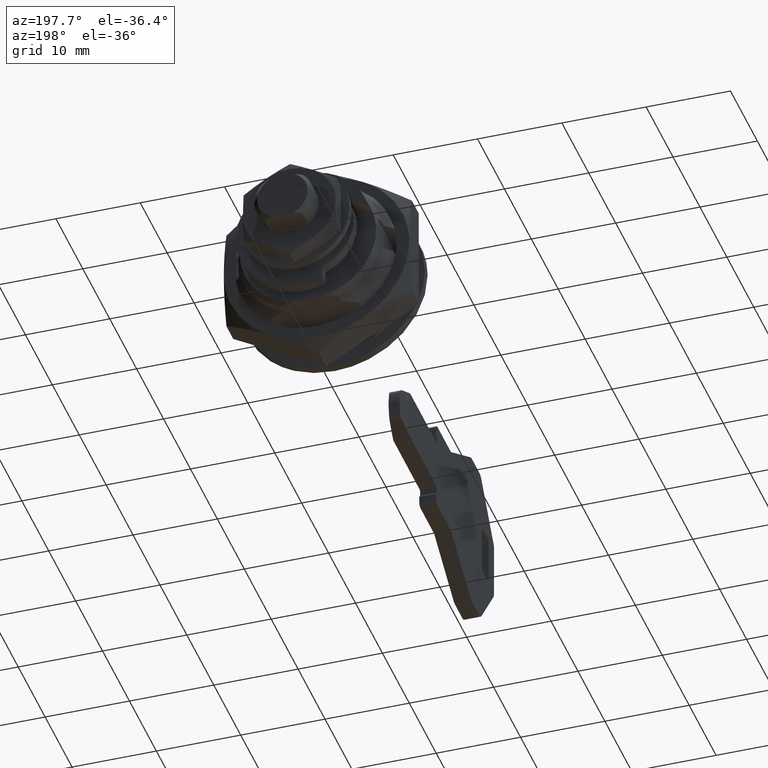
[diagram: clean part render]
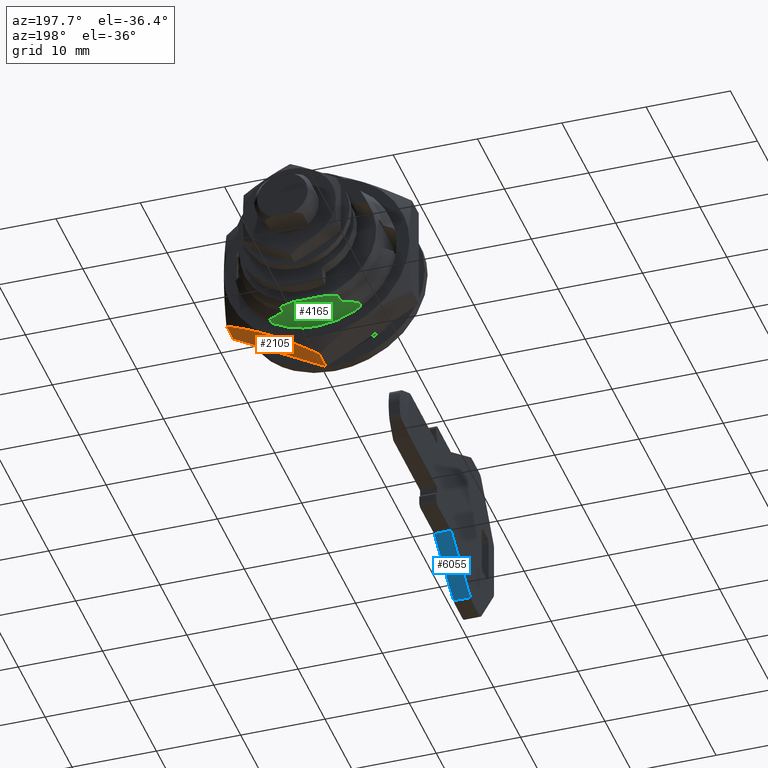
[diagram: same view with three faces highlighted in distinct colors, each labeled with its STEP entity id]
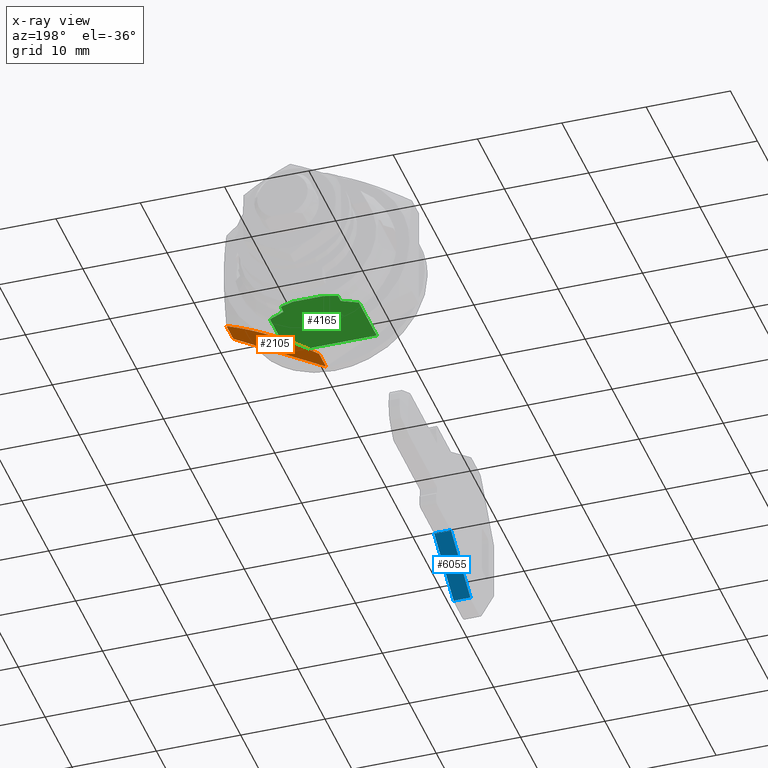
[diagram: x-ray of the same camera — body ghosted, the three highlighted faces saturated]
A machine part, auxiliary view with three faces highlighted in distinct colors.
The next image is the same camera in x-ray (body ghosted, the three faces saturated) — at least one of them is partly hidden behind the body in this view.
Their STEP definitions:

[orange] entity #2105 — the highlighted face is a freeform B-spline surface patch.
#1795=CARTESIAN_POINT('',(4.849396267516419,-2.975774E-016,-12.699999999999999));
#1796=VERTEX_POINT('',#1795);
#1812=CARTESIAN_POINT('',(5.800000000000000,-5.349453371241681,-9.611625701665199));
#1813=VERTEX_POINT('',#1812);
#1825=CARTESIAN_POINT('',(4.849396267516419,-2.975774E-016,-12.699999999999999));
#1826=CARTESIAN_POINT('',(4.921904506133530,-0.224602971591079,-12.570331041948970));
#1827=CARTESIAN_POINT('',(4.991393018424632,-0.450162478950532,-12.440109851683260));
#1828=CARTESIAN_POINT('',(5.090537324562985,-0.790113573536496,-12.243847514141580));
#1829=CARTESIAN_POINT('',(5.122736801379335,-0.903699417632445,-12.178271542688790));
#1830=CARTESIAN_POINT('',(5.185339053940881,-1.131440233173676,-12.046791028215949));
#1831=CARTESIAN_POINT('',(5.215760991474630,-1.245672898768539,-11.980841630404560));
#1832=CARTESIAN_POINT('',(5.362752666195410,-1.816879243707035,-11.651069806569719));
#1833=CARTESIAN_POINT('',(5.464135353772426,-2.274590919210751,-11.386821316757141));
#1834=CARTESIAN_POINT('',(5.629276008722353,-3.191747118405719,-10.857323920185809));
#1835=CARTESIAN_POINT('',(5.692998741956230,-3.651193264844298,-10.592074076574130));
#1836=CARTESIAN_POINT('',(5.774182247247145,-4.523437636202262,-10.088505410502391));
#1837=CARTESIAN_POINT('',(5.795791177380711,-4.936044813104133,-9.850296884879437));
#1838=CARTESIAN_POINT('',(5.800000000000000,-5.349453371241681,-9.611625701665199));
#1839=B_SPLINE_CURVE_WITH_KNOTS('',3,(#1825,#1826,#1827,#1828,#1829,#1830,#1831,#1832,#1833,#1834,#1835,#1836,#1837,#1838),.UNSPECIFIED.,.F.,.U.,(4,2,2,2,2,2,4),(0.0,0.062500000000000,0.093750000000000,0.125000000000000,0.250000000000000,0.375000000000000,0.486813209551073),.UNSPECIFIED.);
#1840=EDGE_CURVE('',#1796,#1813,#1839,.T.);
#1859=CARTESIAN_POINT('',(5.800000000000000,-5.648830570852230,-9.438787696616842));
#1860=VERTEX_POINT('',#1859);
#1861=CARTESIAN_POINT('',(4.849165092728950,-10.999000000000001,-6.350000000000000));
#1862=VERTEX_POINT('',#1861);
#1863=CARTESIAN_POINT('',(5.800000000000000,-5.648830570852230,-9.438787696616842));
#1864=CARTESIAN_POINT('',(5.795808751073855,-6.060390736936629,-9.201183636735403));
#1865=CARTESIAN_POINT('',(5.774356351787330,-6.472745884361489,-8.963120614083538));
#1866=CARTESIAN_POINT('',(5.714327326573565,-7.118068192523106,-8.590559776114057));
#1867=CARTESIAN_POINT('',(5.687388294700834,-7.350499371014879,-8.456371396859325));
#1868=CARTESIAN_POINT('',(5.639224264355345,-7.699503326064737,-8.254882614736712));
#1869=CARTESIAN_POINT('',(5.621859042736284,-7.816014641032784,-8.187617695194291));
#1870=CARTESIAN_POINT('',(5.584695116100500,-8.048575032948831,-8.053354717772075));
#1871=CARTESIAN_POINT('',(5.564917812080886,-8.164510169361215,-7.986422440636097));
#1872=CARTESIAN_POINT('',(5.376641028164135,-9.204958562331607,-7.385745352231510));
#1873=CARTESIAN_POINT('',(5.136571395816003,-10.108811630333619,-6.863928188688202));
#1874=CARTESIAN_POINT('',(4.849165092728950,-10.999000000000001,-6.350000000000000));
#1875=B_SPLINE_CURVE_WITH_KNOTS('',3,(#1863,#1864,#1865,#1866,#1867,#1868,#1869,#1870,#1871,#1872,#1873,#1874),.UNSPECIFIED.,.F.,.U.,(4,2,2,2,2,4),(0.513791066251568,0.625000000000000,0.687500000000000,0.718750000000000,0.750000000000000,1.0),.UNSPECIFIED.);
#1876=EDGE_CURVE('',#1860,#1862,#1875,.T.);
#2063=CARTESIAN_POINT('',(2.299999999999970,0.0,-12.699999999999999));
#2064=VERTEX_POINT('',#2063);
#2065=CARTESIAN_POINT('',(2.299999999999970,0.0,-12.699999999999999));
#2066=CARTESIAN_POINT('',(4.849396267516419,-2.975774E-016,-12.699999999999999));
#2067=QUASI_UNIFORM_CURVE('',1,(#2065,#2066),.UNSPECIFIED.,.F.,.U.);
#2068=EDGE_CURVE('',#2064,#1796,#2067,.T.);
#2078=CARTESIAN_POINT('',(2.125174941072656,-11.548399822180320,-6.032817631526044));
#2079=CARTESIAN_POINT('',(2.125174941072656,0.549400313873935,-13.017182652341070));
#2080=CARTESIAN_POINT('',(5.974825090219751,-11.548399822180320,-6.032817631526044));
#2081=CARTESIAN_POINT('',(5.974825090219751,0.549400313873935,-13.017182652341070));
#2082=B_SPLINE_SURFACE_WITH_KNOTS('',1,1,((#2078,#2080),(#2079,#2081)),.UNSPECIFIED.,.F.,.F.,.U.,(2,2),(2,2),(0.0,13.969184760604280),(0.0,3.849650149147095),.UNSPECIFIED.);
#2083=ORIENTED_EDGE('',*,*,#2068,.T.);
#2084=ORIENTED_EDGE('',*,*,#1840,.T.);
#2085=CARTESIAN_POINT('',(5.800000000000000,-5.648830570852230,-9.438787696616842));
#2086=CARTESIAN_POINT('',(5.800000000000000,-5.349453371241681,-9.611625701665199));
#2087=QUASI_UNIFORM_CURVE('',1,(#2085,#2086),.UNSPECIFIED.,.F.,.U.);
#2088=EDGE_CURVE('',#1860,#1813,#2087,.T.);
#2089=ORIENTED_EDGE('',*,*,#2088,.F.);
#2090=ORIENTED_EDGE('',*,*,#1876,.T.);
#2091=CARTESIAN_POINT('',(2.299999999999970,-10.999000000000001,-6.350000000000000));
#2092=VERTEX_POINT('',#2091);
#2093=CARTESIAN_POINT('',(2.299999999999970,-10.999000000000001,-6.350000000000000));
#2094=CARTESIAN_POINT('',(4.849165092728950,-10.999000000000001,-6.350000000000000));
#2095=QUASI_UNIFORM_CURVE('',1,(#2093,#2094),.UNSPECIFIED.,.F.,.U.);
#2096=EDGE_CURVE('',#2092,#1862,#2095,.T.);
#2097=ORIENTED_EDGE('',*,*,#2096,.F.);
#2098=CARTESIAN_POINT('',(2.299999999999970,-10.999000000000001,-6.350000000000000));
#2099=CARTESIAN_POINT('',(2.299999999999970,0.0,-12.699999999999999));
#2100=QUASI_UNIFORM_CURVE('',1,(#2098,#2099),.UNSPECIFIED.,.F.,.U.);
#2101=EDGE_CURVE('',#2092,#2064,#2100,.T.);
#2102=ORIENTED_EDGE('',*,*,#2101,.T.);
#2103=EDGE_LOOP('',(#2083,#2084,#2089,#2090,#2097,#2102));
#2104=FACE_OUTER_BOUND('',#2103,.T.);
#2105=ADVANCED_FACE('',(#2104),#2082,.T.);

[blue] entity #6055 — the highlighted face is a freeform B-spline surface patch.
#6001=CARTESIAN_POINT('',(-48.237893170505700,-1.0,-9.842237393133500));
#6002=VERTEX_POINT('',#6001);
#6011=CARTESIAN_POINT('',(-48.237893170505700,1.0,-9.842237393133500));
#6012=VERTEX_POINT('',#6011);
#6020=CARTESIAN_POINT('',(-48.237893170505700,1.0,-9.842237393133500));
#6021=CARTESIAN_POINT('',(-48.237893170505700,-1.0,-9.842237393133500));
#6022=QUASI_UNIFORM_CURVE('',1,(#6020,#6021),.UNSPECIFIED.,.F.,.U.);
#6023=EDGE_CURVE('',#6012,#6002,#6022,.T.);
#6028=CARTESIAN_POINT('',(-48.599420203827187,-1.099899996123612,-10.059131709638020));
#6029=CARTESIAN_POINT('',(-40.638571543038367,-1.099899996123612,-5.283104829397738));
#6030=CARTESIAN_POINT('',(-48.599420203827187,1.099900049767792,-10.059131709638020));
#6031=CARTESIAN_POINT('',(-40.638571543038367,1.099900049767792,-5.283104829397738));
#6032=B_SPLINE_SURFACE_WITH_KNOTS('',1,1,((#6028,#6030),(#6029,#6031)),.UNSPECIFIED.,.F.,.F.,.U.,(2,2),(2,2),(0.0,9.283616976198498),(0.0,2.199800045891404),.UNSPECIFIED.);
#6033=CARTESIAN_POINT('',(-41.000100000000003,-1.0,-5.500000000000000));
#6034=VERTEX_POINT('',#6033);
#6035=CARTESIAN_POINT('',(-41.000100000000003,-1.0,-5.500000000000000));
#6036=CARTESIAN_POINT('',(-48.237893170505700,-1.0,-9.842237393133500));
#6037=QUASI_UNIFORM_CURVE('',1,(#6035,#6036),.UNSPECIFIED.,.F.,.U.);
#6038=EDGE_CURVE('',#6034,#6002,#6037,.T.);
#6039=ORIENTED_EDGE('',*,*,#6038,.T.);
#6040=ORIENTED_EDGE('',*,*,#6023,.F.);
#6041=CARTESIAN_POINT('',(-41.000100000000003,1.0,-5.500000000000000));
#6042=VERTEX_POINT('',#6041);
#6043=CARTESIAN_POINT('',(-41.000100000000003,1.0,-5.500000000000000));
#6044=CARTESIAN_POINT('',(-48.237893170505700,1.0,-9.842237393133500));
#6045=QUASI_UNIFORM_CURVE('',1,(#6043,#6044),.UNSPECIFIED.,.F.,.U.);
#6046=EDGE_CURVE('',#6042,#6012,#6045,.T.);
#6047=ORIENTED_EDGE('',*,*,#6046,.F.);
#6048=CARTESIAN_POINT('',(-41.000100000000003,1.0,-5.500000000000000));
#6049=CARTESIAN_POINT('',(-41.000100000000003,-1.0,-5.500000000000000));
#6050=QUASI_UNIFORM_CURVE('',1,(#6048,#6049),.UNSPECIFIED.,.F.,.U.);
#6051=EDGE_CURVE('',#6042,#6034,#6050,.T.);
#6052=ORIENTED_EDGE('',*,*,#6051,.T.);
#6053=EDGE_LOOP('',(#6039,#6040,#6047,#6052));
#6054=FACE_OUTER_BOUND('',#6053,.T.);
#6055=ADVANCED_FACE('',(#6054),#6032,.F.);

[green] entity #4165 — the highlighted face is a freeform B-spline surface patch.
#4080=CARTESIAN_POINT('',(9.449549982556253,-5.803471064010228,-7.899999999999889));
#4081=CARTESIAN_POINT('',(-0.449550223955065,-5.803471064010227,-7.899999999999889));
#4082=CARTESIAN_POINT('',(9.449549982556253,5.803471252707562,-7.899999999999889));
#4083=CARTESIAN_POINT('',(-0.449550223955065,5.803471252707562,-7.899999999999889));
#4084=B_SPLINE_SURFACE_WITH_KNOTS('',1,1,((#4080,#4082),(#4081,#4083)),.UNSPECIFIED.,.F.,.F.,.U.,(2,2),(2,2),(0.0,9.899100206511317),(0.0,11.606942316717790),.UNSPECIFIED.);
#4085=CARTESIAN_POINT('',(6.600000000000000,-5.276362383309330,-7.899999999999889));
#4086=VERTEX_POINT('',#4085);
#4087=CARTESIAN_POINT('',(0.0,-5.276362383309420,-7.899999999999889));
#4088=VERTEX_POINT('',#4087);
#4089=CARTESIAN_POINT('',(6.600000000000000,-5.276362383309330,-7.899999999999889));
#4090=CARTESIAN_POINT('',(0.0,-5.276362383309420,-7.899999999999889));
#4091=QUASI_UNIFORM_CURVE('',1,(#4089,#4090),.UNSPECIFIED.,.F.,.U.);
#4092=EDGE_CURVE('',#4086,#4088,#4091,.T.);
#4093=ORIENTED_EDGE('',*,*,#4092,.T.);
#4094=CARTESIAN_POINT('',(-1.163376E-015,5.276362383309330,-7.899999999999889));
#4095=VERTEX_POINT('',#4094);
#4096=CARTESIAN_POINT('',(-1.163376E-015,5.276362383309330,-7.899999999999889));
#4097=CARTESIAN_POINT('',(0.0,-5.276362383309420,-7.899999999999889));
#4098=QUASI_UNIFORM_CURVE('',1,(#4096,#4097),.UNSPECIFIED.,.F.,.U.);
#4099=EDGE_CURVE('',#4095,#4088,#4098,.T.);
#4100=ORIENTED_EDGE('',*,*,#4099,.F.);
#4101=CARTESIAN_POINT('',(6.600000000000000,5.276362383309330,-7.899999999999889));
#4102=VERTEX_POINT('',#4101);
#4103=CARTESIAN_POINT('',(-1.163376E-015,5.276362383309330,-7.899999999999889));
#4104=CARTESIAN_POINT('',(6.600000000000000,5.276362383309330,-7.899999999999889));
#4105=QUASI_UNIFORM_CURVE('',1,(#4103,#4104),.UNSPECIFIED.,.F.,.U.);
#4106=EDGE_CURVE('',#4095,#4102,#4105,.T.);
#4107=ORIENTED_EDGE('',*,*,#4106,.T.);
#4108=CARTESIAN_POINT('',(7.499999999999900,3.398529093593810,-7.899999999999889));
#4109=VERTEX_POINT('',#4108);
#4110=CARTESIAN_POINT('',(6.600000000000000,5.276362383309330,-7.899999999999889));
#4111=CARTESIAN_POINT('',(6.941409267196238,4.671412105392328,-7.899999999999909));
#4112=CARTESIAN_POINT('',(7.242308375405201,4.043602939710609,-7.899999999999867));
#4113=CARTESIAN_POINT('',(7.499999999999900,3.398529093593810,-7.899999999999889));
#4114=B_SPLINE_CURVE_WITH_KNOTS('',3,(#4110,#4111,#4112,#4113),.UNSPECIFIED.,.F.,.U.,(4,4),(6.397198E-010,2.083926106216798),.UNSPECIFIED.);
#4115=EDGE_CURVE('',#4102,#4109,#4114,.T.);
#4116=ORIENTED_EDGE('',*,*,#4115,.T.);
#4117=CARTESIAN_POINT('',(8.499999999999901,3.398529093593810,-7.899999999999889));
#4118=VERTEX_POINT('',#4117);
#4119=CARTESIAN_POINT('',(7.499999999999900,3.398529093593810,-7.899999999999889));
#4120=CARTESIAN_POINT('',(8.499999999999901,3.398529093593810,-7.899999999999889));
#4121=QUASI_UNIFORM_CURVE('',1,(#4119,#4120),.UNSPECIFIED.,.F.,.U.);
#4122=EDGE_CURVE('',#4109,#4118,#4121,.T.);
#4123=ORIENTED_EDGE('',*,*,#4122,.T.);
#4124=CARTESIAN_POINT('',(9.0,1.788854382000290,-7.899999999999889));
#4125=VERTEX_POINT('',#4124);
#4126=CARTESIAN_POINT('',(8.499999999999901,3.398529093593810,-7.899999999999889));
#4127=CARTESIAN_POINT('',(8.710259337553422,2.876828257711727,-7.899999999999888));
#4128=CARTESIAN_POINT('',(8.877680784641298,2.337871454389921,-7.899999999999889));
#4129=CARTESIAN_POINT('',(9.0,1.788854382000290,-7.899999999999889));
#4130=B_SPLINE_CURVE_WITH_KNOTS('',3,(#4126,#4127,#4128,#4129),.UNSPECIFIED.,.F.,.U.,(4,4),(1.167158E-009,1.687435553263427),.UNSPECIFIED.);
#4131=EDGE_CURVE('',#4118,#4125,#4130,.T.);
#4132=ORIENTED_EDGE('',*,*,#4131,.T.);
#4133=CARTESIAN_POINT('',(9.0,-1.788854382000285,-7.899999999999889));
#4134=VERTEX_POINT('',#4133);
#4135=CARTESIAN_POINT('',(9.0,1.788854382000290,-7.899999999999889));
#4136=CARTESIAN_POINT('',(9.0,-1.788854382000285,-7.899999999999889));
#4137=QUASI_UNIFORM_CURVE('',1,(#4135,#4136),.UNSPECIFIED.,.F.,.U.);
#4138=EDGE_CURVE('',#4125,#4134,#4137,.T.);
#4139=ORIENTED_EDGE('',*,*,#4138,.T.);
#4140=CARTESIAN_POINT('',(8.499999999999901,-3.398529093593810,-7.899999999999889));
#4141=VERTEX_POINT('',#4140);
#4142=CARTESIAN_POINT('',(9.0,-1.788854382000285,-7.899999999999889));
#4143=CARTESIAN_POINT('',(8.876077276242590,-2.337466059245465,-7.899999999999882));
#4144=CARTESIAN_POINT('',(8.708709267176921,-2.876254076857286,-7.899999999999900));
#4145=CARTESIAN_POINT('',(8.499999999999901,-3.398529093593810,-7.899999999999889));
#4146=B_SPLINE_CURVE_WITH_KNOTS('',3,(#4142,#4143,#4144,#4145),.UNSPECIFIED.,.F.,.U.,(4,4),(1.008643E-009,1.687302238867830),.UNSPECIFIED.);
#4147=EDGE_CURVE('',#4134,#4141,#4146,.T.);
#4148=ORIENTED_EDGE('',*,*,#4147,.T.);
#4149=CARTESIAN_POINT('',(7.499999999999900,-3.398529093593810,-7.899999999999889));
#4150=VERTEX_POINT('',#4149);
#4151=CARTESIAN_POINT('',(8.499999999999901,-3.398529093593810,-7.899999999999889));
#4152=CARTESIAN_POINT('',(7.499999999999900,-3.398529093593810,-7.899999999999889));
#4153=QUASI_UNIFORM_CURVE('',1,(#4151,#4152),.UNSPECIFIED.,.F.,.U.);
#4154=EDGE_CURVE('',#4141,#4150,#4153,.T.);
#4155=ORIENTED_EDGE('',*,*,#4154,.T.);
#4156=CARTESIAN_POINT('',(7.499999999999900,-3.398529093593810,-7.899999999999889));
#4157=CARTESIAN_POINT('',(7.240794602351805,-4.042957152579953,-7.899999999999896));
#4158=CARTESIAN_POINT('',(6.939965689363707,-4.670641121572930,-7.899999999999912));
#4159=CARTESIAN_POINT('',(6.600000000000000,-5.276362383309330,-7.899999999999889));
#4160=B_SPLINE_CURVE_WITH_KNOTS('',3,(#4156,#4157,#4158,#4159),.UNSPECIFIED.,.F.,.U.,(4,4),(5.540697E-010,2.083818023893458),.UNSPECIFIED.);
#4161=EDGE_CURVE('',#4150,#4086,#4160,.T.);
#4162=ORIENTED_EDGE('',*,*,#4161,.T.);
#4163=EDGE_LOOP('',(#4093,#4100,#4107,#4116,#4123,#4132,#4139,#4148,#4155,#4162));
#4164=FACE_OUTER_BOUND('',#4163,.T.);
#4165=ADVANCED_FACE('',(#4164),#4084,.T.);